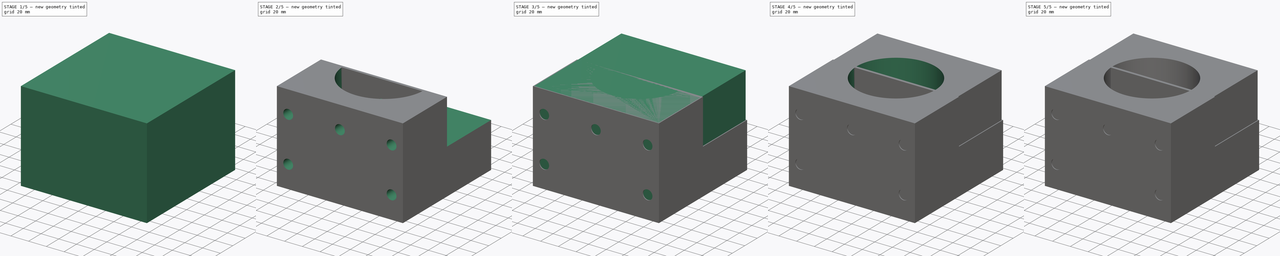
[diagram: build sequence overview — one tinted view per stage of 5, left to right]
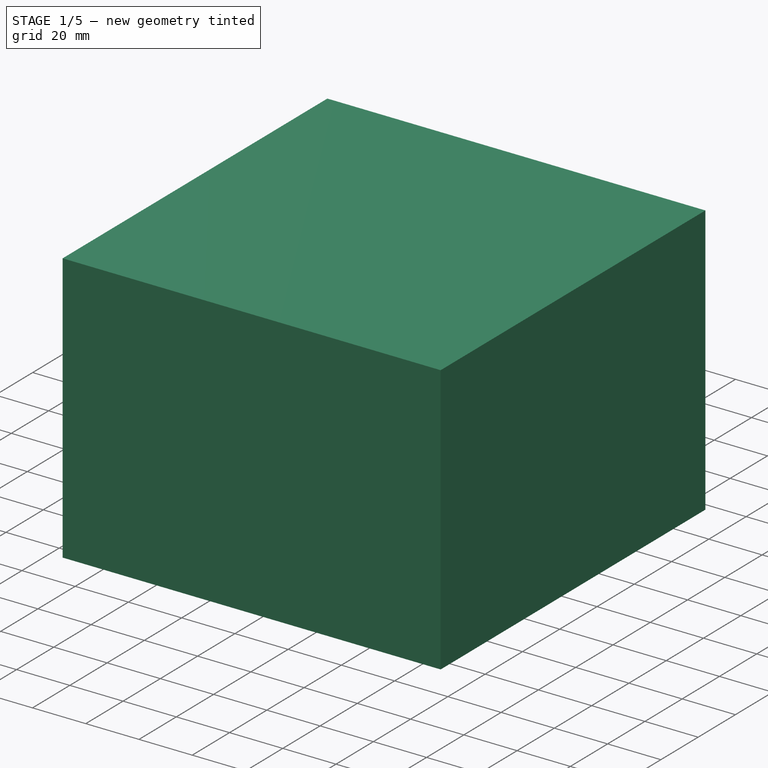
[diagram: stage 1 of 5 — iso view after this stage's code; geometry added in this stage tinted green]
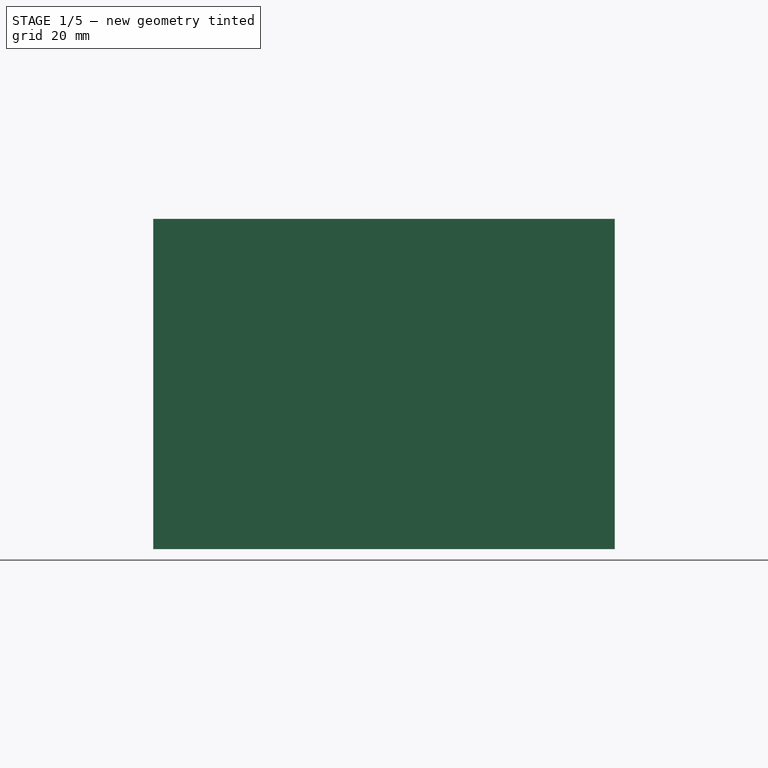
[diagram: stage 1 of 5 — front view after this stage's code; geometry added in this stage tinted green]
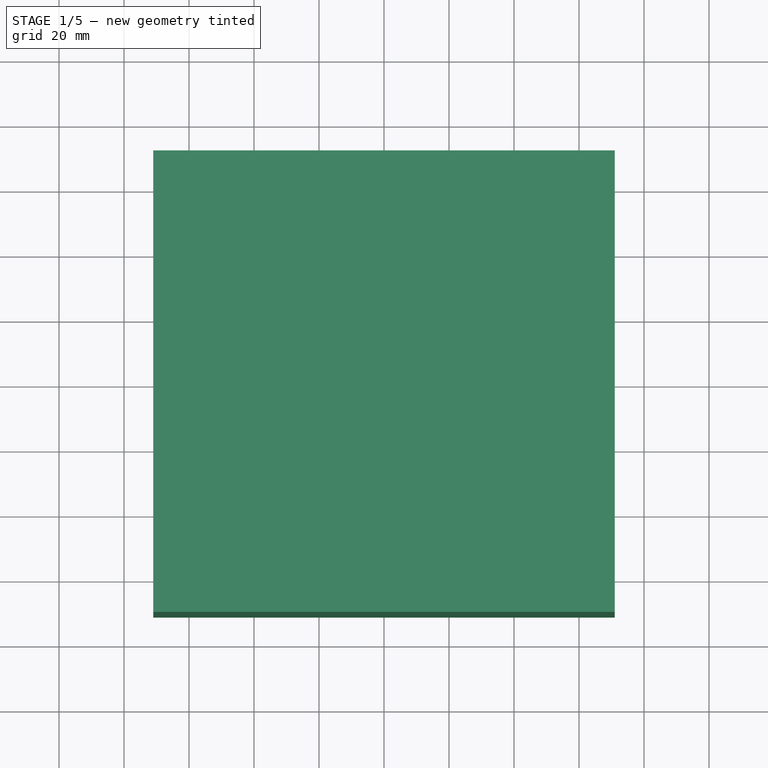
[diagram: stage 1 of 5 — top view after this stage's code; geometry added in this stage tinted green]
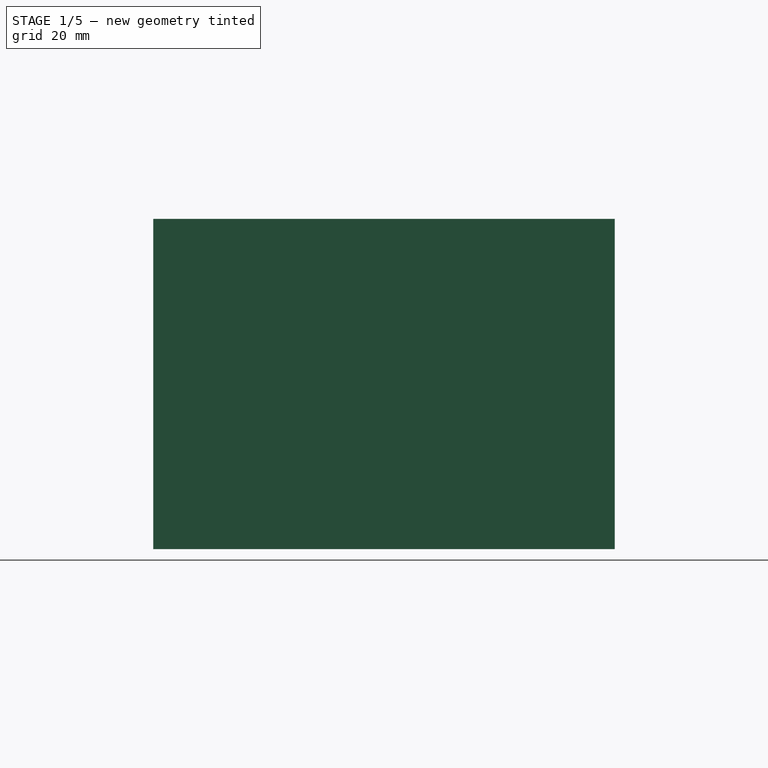
[diagram: stage 1 of 5 — right view after this stage's code; geometry added in this stage tinted green]
FCSTD DOCUMENT  (FreeCAD 0.21R33771 (Git))
Label: MastMounts
License: All rights reserved
LicenseURL: http://en.wikipedia.org/wiki/All_rights_reserved
objects: Sketcher::SketchObject×18, PartDesign::Pocket×13, PartDesign::Pad×5, PartDesign::Body×5, App::Part×5, Spreadsheet::Sheet×2, PartDesign::Chamfer×2
note: 63 computed .brp shape members not serialized (recipe doc carries the construction recipe); baked Part::Feature solids carry a one-line shape summary decoded from their .brp

FEATURE [PartDesign::Body] Body  label="MastBaseBody"
  Group = -> [Sketch,Pad,Sketch001,Pocket,Sketch002,Pocket001,Sketch007,Pocket005,Chamfer]
  Origin = -> Origin001
  Tip = -> Chamfer
FEATURE [App::Part] Part  label="MastBasePart"
  Group = -> [Body]
  Origin = -> Origin
FEATURE [Sketcher::SketchObject] Sketch008
  FullyConstrained = true
  MapMode = 5
  Support = -> [XY_Plane005]
  expr: Constraints[10] = <<p001>>.mast_od + <<p001>>.mast_clearance * 2
  expr: Constraints[9] = <<p001>>.mast_od + <<p001>>.mast_clearance * 2
  sketch-geometry (4):
    g0: LineSegment StartX=-71 StartY=71 StartZ=0 EndX=71 EndY=71 EndZ=0
    g1: LineSegment StartX=71 StartY=71 StartZ=0 EndX=71 EndY=-71 EndZ=0
    g2: LineSegment StartX=71 StartY=-71 StartZ=0 EndX=-71 EndY=-71 EndZ=0
    g3: LineSegment StartX=-71 StartY=-71 StartZ=0 EndX=-71 EndY=71 EndZ=0
  constraints (11):
    c: Coincident(g0,g1)
    c: Coincident(g1,g2)
    c: Coincident(g2,g3)
    c: Coincident(g3,g0)
    c: Horizontal(g0)
    c: Horizontal(g2)
    c: Vertical(g1)
    c: Vertical(g3)
    c: Symmetric(g0,g2,g-1)
    c: DistanceX(g0,g0) = 142
    c: DistanceY(g1,g1) = 142
FEATURE [PartDesign::Pad] Pad002  label="HolderBase001"
  Direction = (0,0,1)
  Length = 101.6
  Length2 = 10
  Profile = -> Sketch008
  ReferenceAxis = -> Sketch008 [N_Axis]
  Type = 0
  expr: Length = <<p001>>.holder_thickness * 2
FEATURE [PartDesign::Body] Body002  label="HolderBody001"
  Group = -> [Sketch008,Pad002,Sketch009,Pocket006,Sketch010,Pocket007,Sketch011,Pocket008,Sketch012,Pocket009,Chamfer001,Sketch013,Pocket010]
  Origin = -> Origin005
  Tip = -> Pocket010
FEATURE [App::Part] Part002  label="HolderParts001"
  Group = -> [Body002]
  Origin = -> Origin004
FEATURE [Sketcher::SketchObject] Sketch014
  FullyConstrained = true
  MapMode = 5
  Placement = pos=(0,0,0) rot=(1,0,0;1.5708rad)
  Support = -> [XZ_Plane007]
  expr: Constraints[9] = <<p>>.base_thickness
  sketch-geometry (4):
    g0: LineSegment StartX=-71 StartY=101.6 StartZ=0 EndX=71 EndY=101.6 EndZ=0
    g1: LineSegment StartX=71 StartY=101.6 StartZ=0 EndX=71 EndY=0 EndZ=0
    g2: LineSegment StartX=71 StartY=0 StartZ=0 EndX=-71 EndY=0 EndZ=0
    g3: LineSegment StartX=-71 StartY=0 StartZ=0 EndX=-71 EndY=101.6 EndZ=0
  constraints (12):
    c: Coincident(g0,g1)
    c: Coincident(g1,g2)
    c: Coincident(g2,g3)
    c: Coincident(g3,g0)
    c: Horizontal(g0)
    c: Horizontal(g2)
    c: Vertical(g1)
    c: Vertical(g3)
    c: DistanceX(g0,g0) = 142
    c: DistanceY(g1,g1) = 101.6
    c: DistanceY(g2,g-1) = 0
    c: DistanceX(g-1,g1) = 71
FEATURE [Sketcher::SketchObject] Sketch015
  FullyConstrained = true
  MapMode = 5
  Placement = pos=(0,-71,0) rot=(1,0,0;1.5708rad)
  Support = -> [Pocket006]
  expr: Constraints[10] = <<p001>>.holder_thickness * 2 - <<p001>>.holder_thickness / 2
  expr: Constraints[11] = <<p001>>.holder_thickness * 2 - <<p001>>.holder_thickness / 2
  expr: Constraints[13] = <<p001>>.bold_diameter
  expr: Constraints[1] = <<p001>>.bold_diameter
  expr: Constraints[2] = (<<p001>>.mast_od + <<p001>>.mast_clearance * 2) / 2 - <<p001>>.mast_clearance / 2
  expr: Constraints[3] = (<<p001>>.mast_od + <<p001>>.mast_clearance * 2) / 2 - <<p001>>.mast_clearance / 2
  expr: Constraints[4] = <<p001>>.holder_thickness / 2
  expr: Constraints[5] = <<p001>>.holder_thickness / 2
  expr: Constraints[7] = <<p001>>.bold_diameter
  expr: Constraints[8] = (<<p001>>.mast_od + <<p001>>.mast_clearance * 2) / 2 - <<p001>>.mast_clearance / 2
  expr: Constraints[9] = (<<p001>>.mast_od + <<p001>>.mast_clearance * 2) / 2 - <<p001>>.mast_clearance / 2
  sketch-geometry (5):
    g0: Circle CenterX=-58.25 CenterY=25.4 CenterZ=0 NormalX=0 NormalY=0 NormalZ=1 AngleXU=0 Radius=5.5
    g1: Circle CenterX=58.25 CenterY=25.4 CenterZ=0 NormalX=0 NormalY=0 NormalZ=1 AngleXU=0 Radius=5.5
    g2: Circle CenterX=-58.25 CenterY=76.2 CenterZ=0 NormalX=0 NormalY=0 NormalZ=1 AngleXU=0 Radius=5.5
    g3: Circle CenterX=58.25 CenterY=76.2 CenterZ=0 NormalX=0 NormalY=0 NormalZ=1 AngleXU=0 Radius=5.5
    g4: Circle CenterX=0 CenterY=76.2 CenterZ=0 NormalX=0 NormalY=0 NormalZ=1 AngleXU=0 Radius=5.5
  constraints (15):
    c: Equal(g1,g0)
    c: Diameter(g1) = 11
    c: DistanceX(g0,g-1) = 58.25
    c: DistanceX(g-1,g1) = 58.25
    c: DistanceY(g-1,g0) = 25.4
    c: DistanceY(g-1,g1) = 25.4
    c: Equal(g2,g3)
    c: Diameter(g2) = 11
    c: DistanceX(g2,g-1) = 58.25
    c: DistanceX(g-1,g3) = 58.25
    c: DistanceY(g-1,g2) = 76.2
    c: DistanceY(g-1,g3) = 76.2
    c: PointOnObject(g4,g-2)
    c: Diameter(g4) = 11
    c: DistanceY(g-1,g4) = 76.2
FEATURE [PartDesign::Pad] Pad003
  Direction = (0,-1,2e-16)
  Length = 3
  Length2 = 10
  Placement = pos=(0,0,0) rot=(1,0,0;1.5708rad)
  Profile = -> Sketch014
  ReferenceAxis = -> Sketch014 [N_Axis]
  Type = 0
FEATURE [PartDesign::Body] Body003  label="BigBackBody"
  Group = -> [Sketch014,Pad003,Sketch015,Pocket011]
  Origin = -> Origin007
  Tip = -> Pocket011
FEATURE [App::Part] Part003  label="BigBackPart"
  Group = -> [Body003]
  Origin = -> Origin006
FEATURE [Sketcher::SketchObject] Sketch016
  FullyConstrained = true
  MapMode = 5
  Placement = pos=(0,0,0) rot=(1,0,0;1.5708rad)
  Support = -> [XZ_Plane009]
  expr: Constraints[9] = <<p>>.holder_thickness
  sketch-geometry (4):
    g0: LineSegment StartX=-70 StartY=0 StartZ=0 EndX=70 EndY=0 EndZ=0
    g1: LineSegment StartX=70 StartY=0 StartZ=0 EndX=70 EndY=50.8 EndZ=0
    g2: LineSegment StartX=70 StartY=50.8 StartZ=0 EndX=-70 EndY=50.8 EndZ=0
    g3: LineSegment StartX=-70 StartY=50.8 StartZ=0 EndX=-70 EndY=0 EndZ=0
  constraints (12):
    c: Coincident(g0,g1)
    c: Coincident(g1,g2)
    c: Coincident(g2,g3)
    c: Coincident(g3,g0)
    c: Horizontal(g0)
    c: Horizontal(g2)
    c: Vertical(g1)
    c: Vertical(g3)
    c: PointOnObject(g0,g-1)
    c: DistanceY(g3,g3) = 50.8
    c: DistanceX(g2,g2) = 140
    c: DistanceX(g-1,g0) = 70
FEATURE [PartDesign::Pad] Pad004
  Direction = (0,-1,2e-16)
  Length = 3
  Length2 = 10
  Placement = pos=(0,0,0) rot=(1,0,0;1.5708rad)
  Profile = -> Sketch016
  ReferenceAxis = -> Sketch016 [N_Axis]
  Type = 0
FEATURE [Sketcher::SketchObject] Sketch017
  FullyConstrained = true
  MapMode = 5
  Placement = pos=(0,-3,7e-16) rot=(1,0,0;1.5708rad)
  Support = -> [Pad004]
  expr: Constraints[1] = <<p>>.bold_diameter
  expr: Constraints[2] = (<<p>>.mast_od + <<p>>.mast_clearance * 2) / 2 - <<p>>.mast_clearance / 2
  expr: Constraints[3] = (<<p>>.mast_od + <<p>>.mast_clearance * 2) / 2 - <<p>>.mast_clearance / 2
  expr: Constraints[4] = <<p>>.holder_thickness / 2
  expr: Constraints[5] = <<p>>.holder_thickness / 2
  sketch-geometry (2):
    g0: Circle CenterX=-57.25 CenterY=25.4 CenterZ=0 NormalX=0 NormalY=0 NormalZ=1 AngleXU=0 Radius=5.5
    g1: Circle CenterX=57.25 CenterY=25.4 CenterZ=0 NormalX=0 NormalY=0 NormalZ=1 AngleXU=0 Radius=5.5
  constraints (6):
    c: Equal(g1,g0)
    c: Diameter(g1) = 11
    c: DistanceX(g0,g-1) = 57.25
    c: DistanceX(g-1,g1) = 57.25
    c: DistanceY(g-1,g0) = 25.4
    c: DistanceY(g-1,g1) = 25.4
FEATURE [PartDesign::Pocket] Pocket012
  BaseFeature = -> Pad004
  Direction = (0,1,-2e-16)
  Length = 5
  Length2 = 5
  Placement = pos=(0,0,0) rot=(1,0,0;1.5708rad)
  Profile = -> Sketch017
  ReferenceAxis = -> Sketch017 [N_Axis]
  Type = 0
FEATURE [PartDesign::Body] Body004  label="SmallBackBody"
  Group = -> [Sketch016,Pad004,Sketch017,Pocket012]
  Origin = -> Origin009
  Tip = -> Pocket012
FEATURE [App::Part] Part004  label="SmallBack"
  Group = -> [Body004]
  Origin = -> Origin008
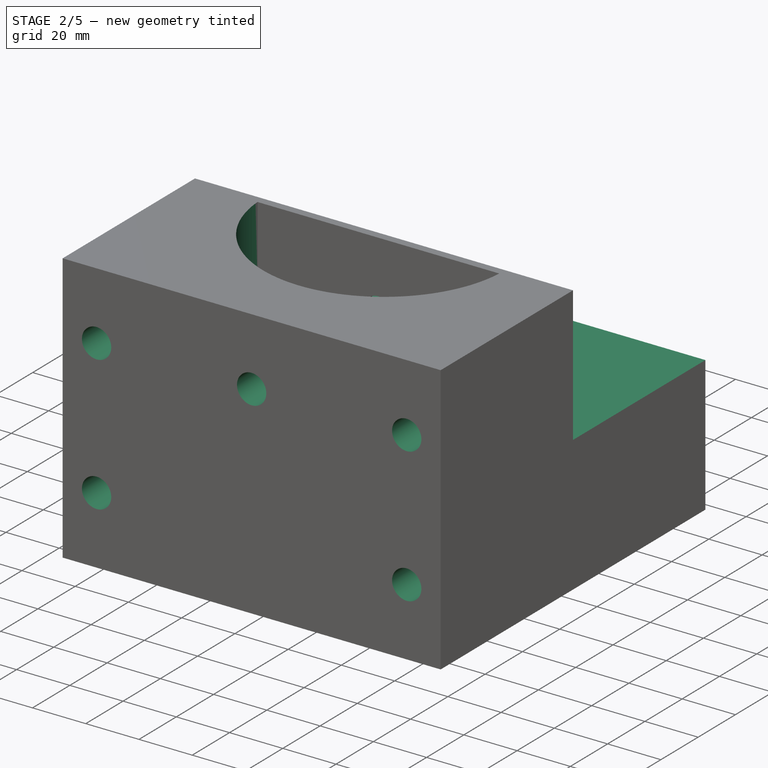
[diagram: stage 2 of 5 — iso view after this stage's code; geometry added in this stage tinted green]
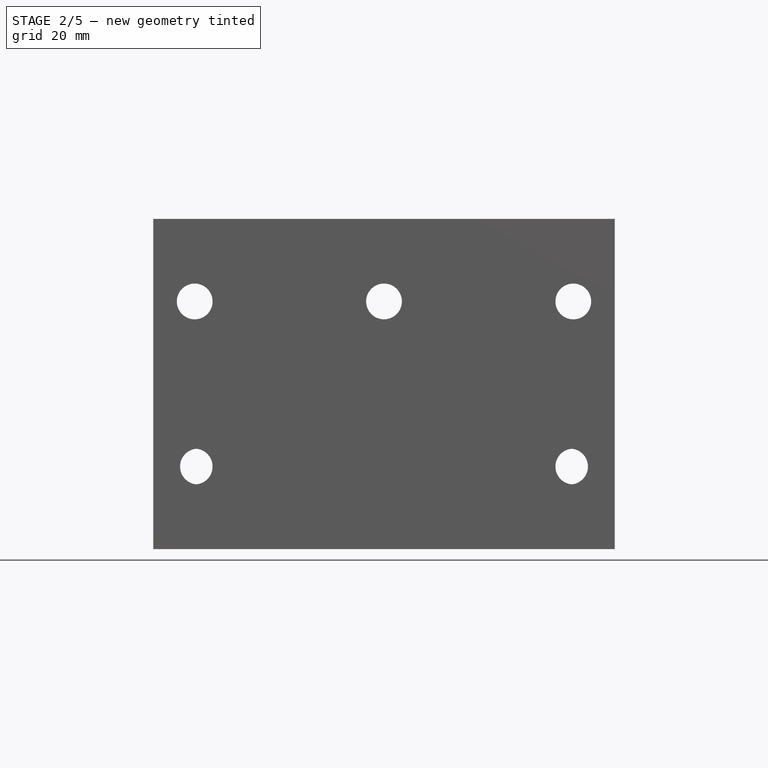
[diagram: stage 2 of 5 — front view after this stage's code; geometry added in this stage tinted green]
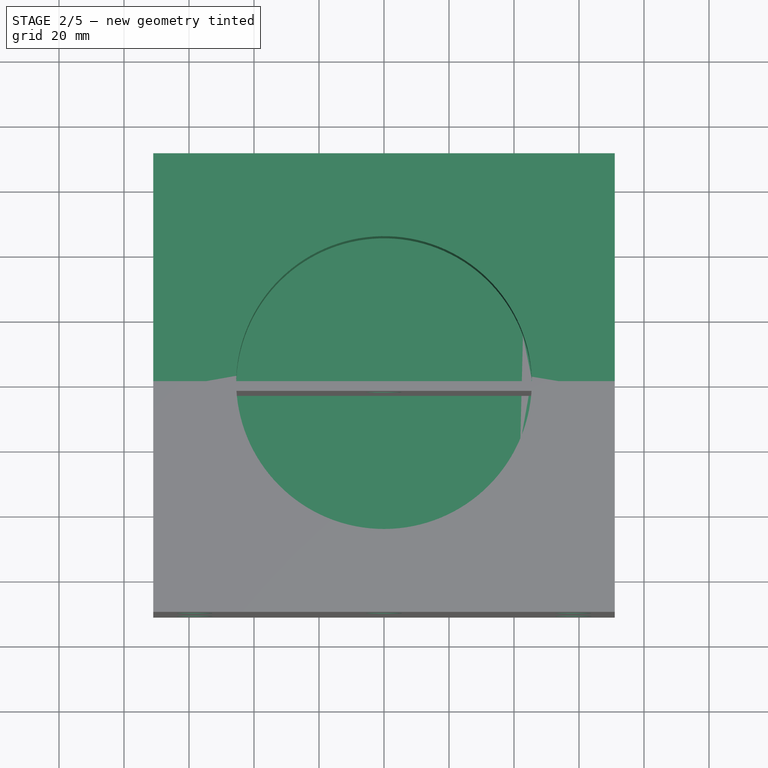
[diagram: stage 2 of 5 — top view after this stage's code; geometry added in this stage tinted green]
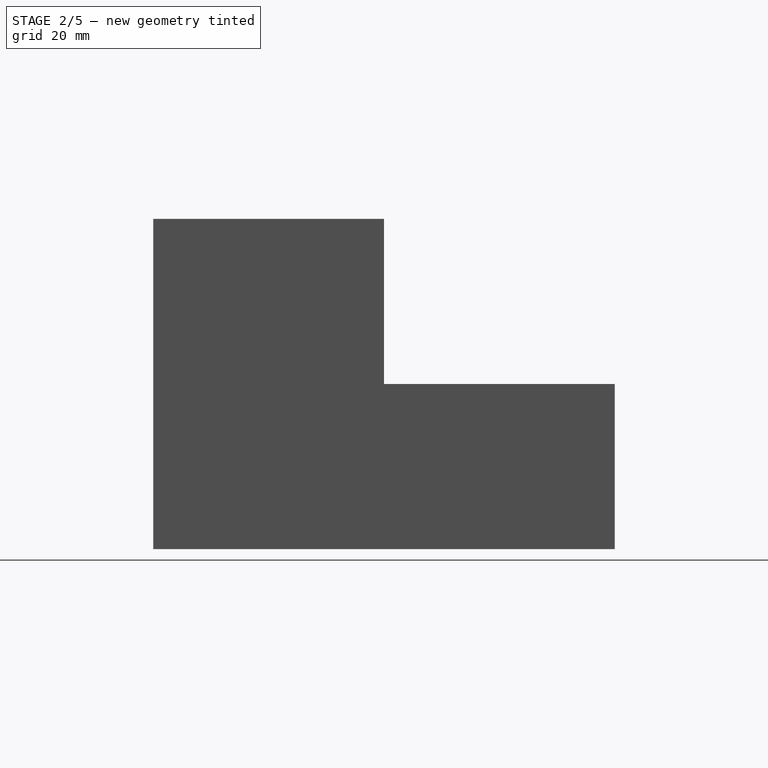
[diagram: stage 2 of 5 — right view after this stage's code; geometry added in this stage tinted green]
FEATURE [Sketcher::SketchObject] Sketch009
  FullyConstrained = true
  MapMode = 5
  Placement = pos=(0,0,101.6) rot=(0,0,1;0rad)
  Support = -> [Pad002]
  expr: Constraints[1] = <<p001>>.mast_od
  sketch-geometry (1):
    g0: Circle CenterX=0 CenterY=0 CenterZ=0 NormalX=0 NormalY=0 NormalZ=1 AngleXU=0 Radius=45.5
  constraints (2):
    c: Coincident(g0,g-1)
    c: Diameter(g0) = 91
FEATURE [Spreadsheet::Sheet] Spreadsheet001  label="p001"
  cells = A1='mast_od; B1(mast_od)=91; A2='mast_clearance; B2(mast_clearance)=25.5; A3='bold_diameter; B3(bold_diameter)=11; A4='base_thickness; B4(base_thickness)=101.6; A5='holder_thickness; B5(holder_thickness)=50.8; A6='holder_clearance; B6(holder_clearance)=4
FEATURE [PartDesign::Pocket] Pocket006  label="MastPocket002"
  BaseFeature = -> Pad002
  Direction = (0,0,-1)
  Length = 88.85
  Length2 = 5
  Profile = -> Sketch009
  ReferenceAxis = -> Sketch009 [N_Axis]
  Type = 0
  expr: Length = <<p001>>.holder_thickness * 2 - <<p001>>.mast_clearance / 2
FEATURE [Sketcher::SketchObject] Sketch010
  FullyConstrained = true
  MapMode = 5
  Placement = pos=(0,-71,0) rot=(1,0,0;1.5708rad)
  Support = -> [Pocket006]
  expr: Constraints[10] = <<p001>>.holder_thickness * 2 - <<p001>>.holder_thickness / 2
  expr: Constraints[11] = <<p001>>.holder_thickness * 2 - <<p001>>.holder_thickness / 2
  expr: Constraints[13] = <<p001>>.bold_diameter
  expr: Constraints[1] = <<p001>>.bold_diameter
  expr: Constraints[2] = (<<p001>>.mast_od + <<p001>>.mast_clearance * 2) / 2 - <<p001>>.mast_clearance / 2
  expr: Constraints[3] = (<<p001>>.mast_od + <<p001>>.mast_clearance * 2) / 2 - <<p001>>.mast_clearance / 2
  expr: Constraints[4] = <<p001>>.holder_thickness / 2
  expr: Constraints[5] = <<p001>>.holder_thickness / 2
  expr: Constraints[7] = <<p001>>.bold_diameter
  expr: Constraints[8] = (<<p001>>.mast_od + <<p001>>.mast_clearance * 2) / 2 - <<p001>>.mast_clearance / 2
  expr: Constraints[9] = (<<p001>>.mast_od + <<p001>>.mast_clearance * 2) / 2 - <<p001>>.mast_clearance / 2
  sketch-geometry (5):
    g0: Circle CenterX=-58.25 CenterY=25.4 CenterZ=0 NormalX=0 NormalY=0 NormalZ=1 AngleXU=0 Radius=5.5
    g1: Circle CenterX=58.25 CenterY=25.4 CenterZ=0 NormalX=0 NormalY=0 NormalZ=1 AngleXU=0 Radius=5.5
    g2: Circle CenterX=-58.25 CenterY=76.2 CenterZ=0 NormalX=0 NormalY=0 NormalZ=1 AngleXU=0 Radius=5.5
    g3: Circle CenterX=58.25 CenterY=76.2 CenterZ=0 NormalX=0 NormalY=0 NormalZ=1 AngleXU=0 Radius=5.5
    g4: Circle CenterX=0 CenterY=76.2 CenterZ=0 NormalX=0 NormalY=0 NormalZ=1 AngleXU=0 Radius=5.5
  constraints (15):
    c: Equal(g1,g0)
    c: Diameter(g1) = 11
    c: DistanceX(g0,g-1) = 58.25
    c: DistanceX(g-1,g1) = 58.25
    c: DistanceY(g-1,g0) = 25.4
    c: DistanceY(g-1,g1) = 25.4
    c: Equal(g2,g3)
    c: Diameter(g2) = 11
    c: DistanceX(g2,g-1) = 58.25
    c: DistanceX(g-1,g3) = 58.25
    c: DistanceY(g-1,g2) = 76.2
    c: DistanceY(g-1,g3) = 76.2
    c: PointOnObject(g4,g-2)
    c: Diameter(g4) = 11
    c: DistanceY(g-1,g4) = 76.2
FEATURE [PartDesign::Pocket] Pocket007  label="BoltPockets001"
  BaseFeature = -> Pocket006
  Direction = (0,1,-2e-16)
  Length = 5
  Length2 = 5
  Profile = -> Sketch010
  ReferenceAxis = -> Sketch010 [N_Axis]
  Type = 1
FEATURE [Sketcher::SketchObject] Sketch011
  FullyConstrained = true
  MapMode = 5
  Placement = pos=(0,0,101.6) rot=(0,0,1;0rad)
  Support = -> [Pocket007]
  expr: Constraints[10] = <<p001>>.holder_clearance / 2
  sketch-geometry (4):
    g0: LineSegment StartX=-78.68 StartY=73.5 StartZ=0 EndX=77.18 EndY=73.5 EndZ=0
    g1: LineSegment StartX=77.18 StartY=73.5 StartZ=0 EndX=77.18 EndY=-2 EndZ=0
    g2: LineSegment StartX=77.18 StartY=-2 StartZ=0 EndX=-78.68 EndY=-2 EndZ=0
    g3: LineSegment StartX=-78.68 StartY=-2 StartZ=0 EndX=-78.68 EndY=73.5 EndZ=0
  constraints (12):
    c: Coincident(g0,g1)
    c: Coincident(g1,g2)
    c: Coincident(g2,g3)
    c: Coincident(g3,g0)
    c: Horizontal(g0)
    c: Horizontal(g2)
    c: Vertical(g1)
    c: Vertical(g3)
    c: DistanceX(g0,g0) = 155.86
    c: DistanceY(g1,g1) = 75.5
    c: DistanceY(g2,g-1) = 2
    c: DistanceX(g0,g-1) = 78.68
FEATURE [PartDesign::Pocket] Pocket008
  BaseFeature = -> Pocket007
  Direction = (0,0,-1)
  Length = 50.8
  Length2 = 5
  Profile = -> Sketch011
  ReferenceAxis = -> Sketch011 [N_Axis]
  Type = 0
  expr: Length = <<p001>>.holder_thickness
FEATURE [PartDesign::Pocket] Pocket011
  BaseFeature = -> Pad003
  Direction = (0,1,-2e-16)
  Length = 5
  Length2 = 5
  Placement = pos=(0,0,0) rot=(1,0,0;1.5708rad)
  Profile = -> Sketch015
  ReferenceAxis = -> Sketch015 [N_Axis]
  Type = 1
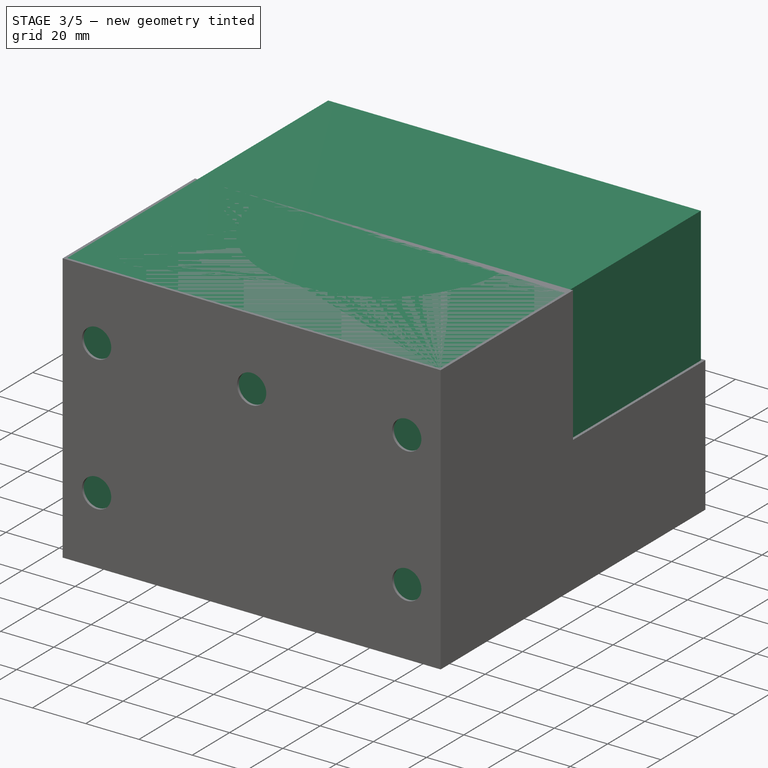
[diagram: stage 3 of 5 — iso view after this stage's code; geometry added in this stage tinted green]
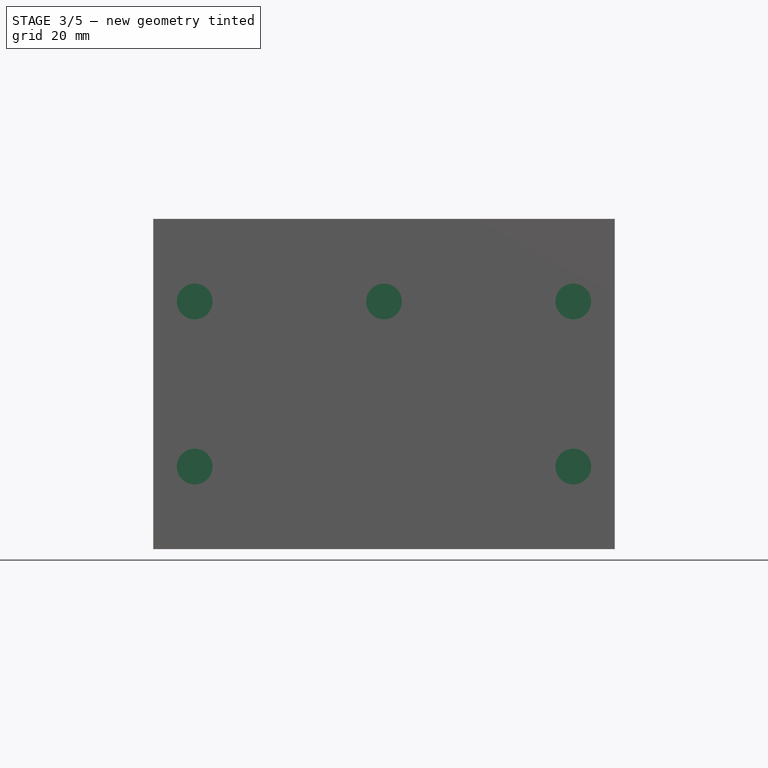
[diagram: stage 3 of 5 — front view after this stage's code; geometry added in this stage tinted green]
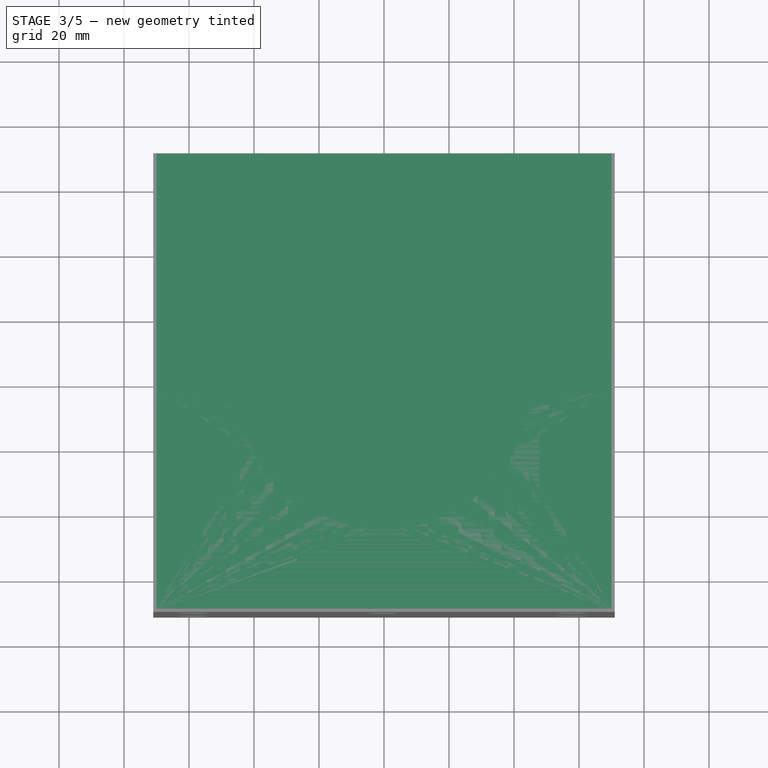
[diagram: stage 3 of 5 — top view after this stage's code; geometry added in this stage tinted green]
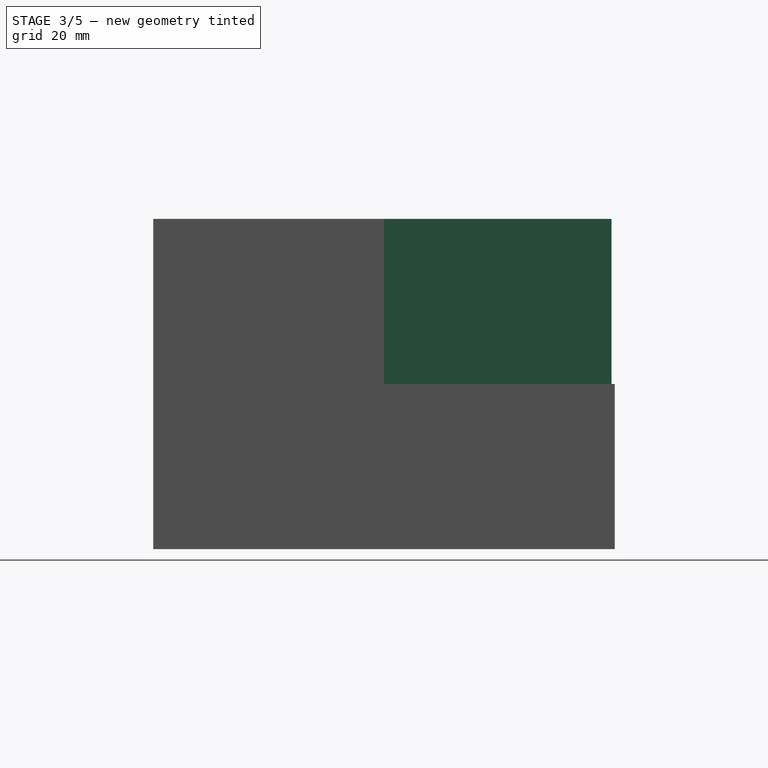
[diagram: stage 3 of 5 — right view after this stage's code; geometry added in this stage tinted green]
FEATURE [Spreadsheet::Sheet] Spreadsheet  label="p"
  cells = A1='mast_od; B1(mast_od)=89; A2='mast_clearance; B2(mast_clearance)=25.5; A3='bold_diameter; B3(bold_diameter)=11; A4='base_thickness; B4(base_thickness)=101.6; A5='holder_thickness; B5(holder_thickness)=50.8; A6='holder_clearance; B6(holder_clearance)=4
FEATURE [Sketcher::SketchObject] Sketch
  FullyConstrained = true
  MapMode = 5
  Support = -> [XY_Plane001]
  sketch-geometry (4):
    g0: LineSegment StartX=-70 StartY=70 StartZ=0 EndX=70 EndY=70 EndZ=0
    g1: LineSegment StartX=70 StartY=70 StartZ=0 EndX=70 EndY=-70 EndZ=0
    g2: LineSegment StartX=70 StartY=-70 StartZ=0 EndX=-70 EndY=-70 EndZ=0
    g3: LineSegment StartX=-70 StartY=-70 StartZ=0 EndX=-70 EndY=70 EndZ=0
  constraints (11):
    c: Coincident(g0,g1)
    c: Coincident(g1,g2)
    c: Coincident(g2,g3)
    c: Coincident(g3,g0)
    c: Horizontal(g0)
    c: Horizontal(g2)
    c: Vertical(g1)
    c: Vertical(g3)
    c: Symmetric(g0,g2,g-1)
    c: DistanceX(g0,g0) = 140
    c: DistanceY(g3,g3) = 140
FEATURE [PartDesign::Pad] Pad  label="Base"
  Direction = (0,0,1)
  Length = 101.6
  Length2 = 10
  Profile = -> Sketch
  ReferenceAxis = -> Sketch [N_Axis]
  Type = 0
  expr: Length = <<p>>.base_thickness
FEATURE [Sketcher::SketchObject] Sketch012
  FullyConstrained = true
  MapMode = 5
  Placement = pos=(0,0,12.75) rot=(0,0,1;0rad)
  Support = -> [Pocket008]
  sketch-geometry (5):
    g0: Circle CenterX=0 CenterY=0 CenterZ=0 NormalX=0 NormalY=0 NormalZ=1 AngleXU=0 Radius=2
    g1: Circle CenterX=-23 CenterY=0 CenterZ=0 NormalX=0 NormalY=0 NormalZ=1 AngleXU=0 Radius=2
    g2: Circle CenterX=23 CenterY=0 CenterZ=0 NormalX=0 NormalY=0 NormalZ=1 AngleXU=0 Radius=2
    g3: Circle CenterX=0 CenterY=23 CenterZ=0 NormalX=0 NormalY=0 NormalZ=1 AngleXU=0 Radius=2
    g4: Circle CenterX=0 CenterY=-23 CenterZ=0 NormalX=0 NormalY=0 NormalZ=1 AngleXU=0 Radius=2
  constraints (11):
    c: Coincident(g0,g-1)
    c: PointOnObject(g1,g-1)
    c: PointOnObject(g2,g-1)
    c: PointOnObject(g3,g-2)
    c: PointOnObject(g4,g-2)
    c: Equal(g0, g1-g4) x4
    c: Diameter(g0) = 4
    c: DistanceX(g0,g2) = 23
    c: DistanceX(g1,g0) = 23
    c: DistanceY(g0,g3) = 23
    c: DistanceY(g4,g0) = 23
FEATURE [PartDesign::Pocket] Pocket009
  BaseFeature = -> Pocket008
  Direction = (0,0,-1)
  Length = 5
  Length2 = 5
  Profile = -> Sketch012
  ReferenceAxis = -> Sketch012 [N_Axis]
  Type = 1
FEATURE [PartDesign::Chamfer] Chamfer001
  Angle = 45
  Base = -> Pocket009 [Edge43,Edge39,Edge37,Edge35,Edge41]
  BaseFeature = -> Pocket009
  ChamferType = 0
  FlipDirection = false
  Size = 3
  Size2 = 1
  SupportTransform = false
  UseAllEdges = false
FEATURE [Sketcher::SketchObject] Sketch013
  FullyConstrained = true
  MapMode = 5
  Placement = pos=(0,-2,0) rot=(0,0.707107,0.707107;3.14159rad)
  Support = -> [Chamfer001]
  expr: Constraints[1] = <<p001>>.holder_thickness * 2 - <<p001>>.holder_thickness / 2
  sketch-geometry (1):
    g0: Circle CenterX=0 CenterY=76.2 CenterZ=0 NormalX=0 NormalY=0 NormalZ=1 AngleXU=0 Radius=19.025
  constraints (3):
    c: PointOnObject(g0,g-2)
    c: DistanceY(g-1,g0) = 76.2
    c: Diameter(g0) = 38.05
FEATURE [PartDesign::Pocket] Pocket010
  BaseFeature = -> Chamfer001
  Direction = (0,-1,2e-16)
  Length = 54
  Length2 = 5
  Profile = -> Sketch013
  ReferenceAxis = -> Sketch013 [N_Axis]
  Type = 0
  expr: Length = <<p001>>.mast_od / 2 + <<p001>>.mast_clearance / 3
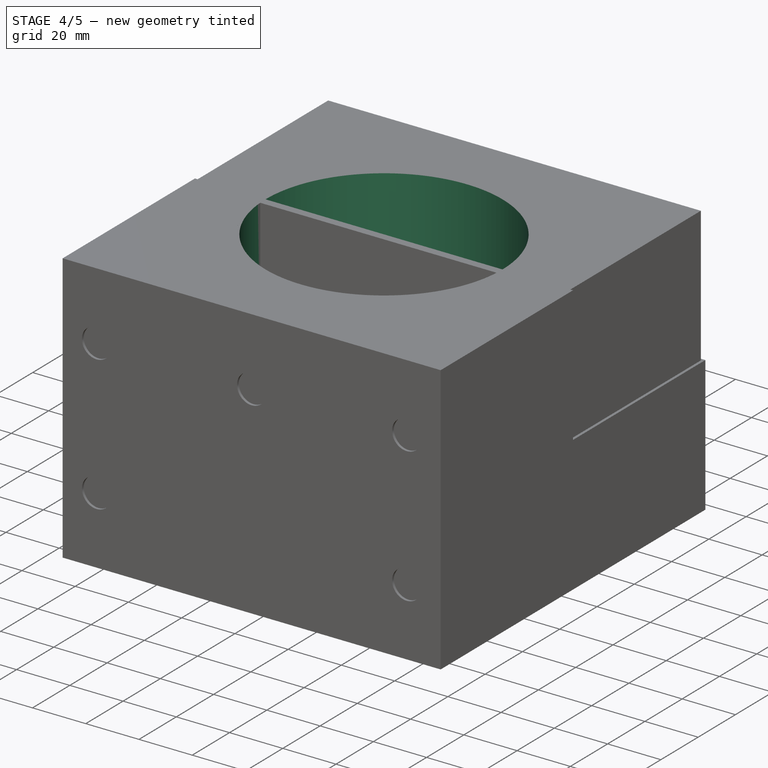
[diagram: stage 4 of 5 — iso view after this stage's code; geometry added in this stage tinted green]
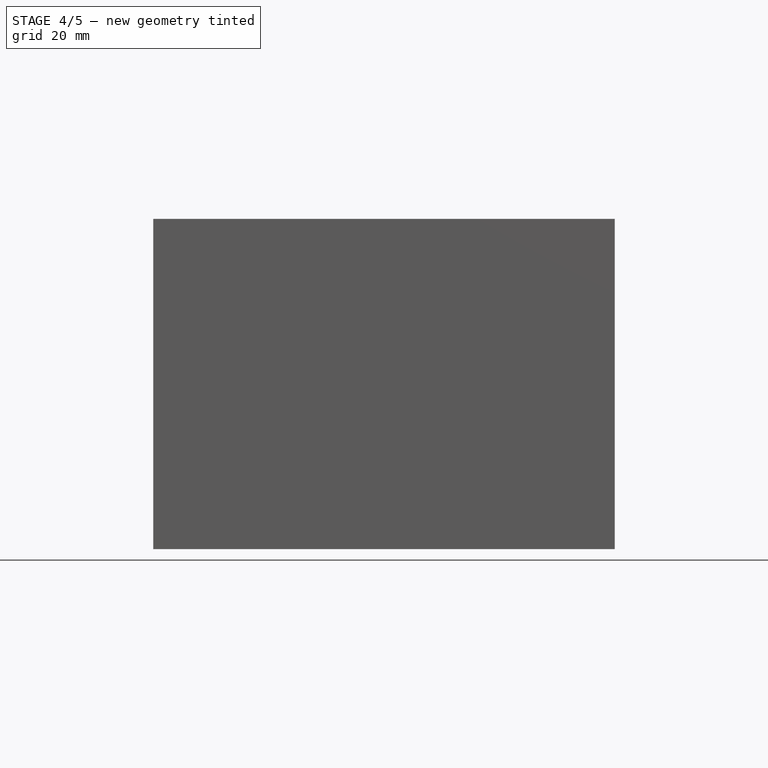
[diagram: stage 4 of 5 — front view after this stage's code; geometry added in this stage tinted green]
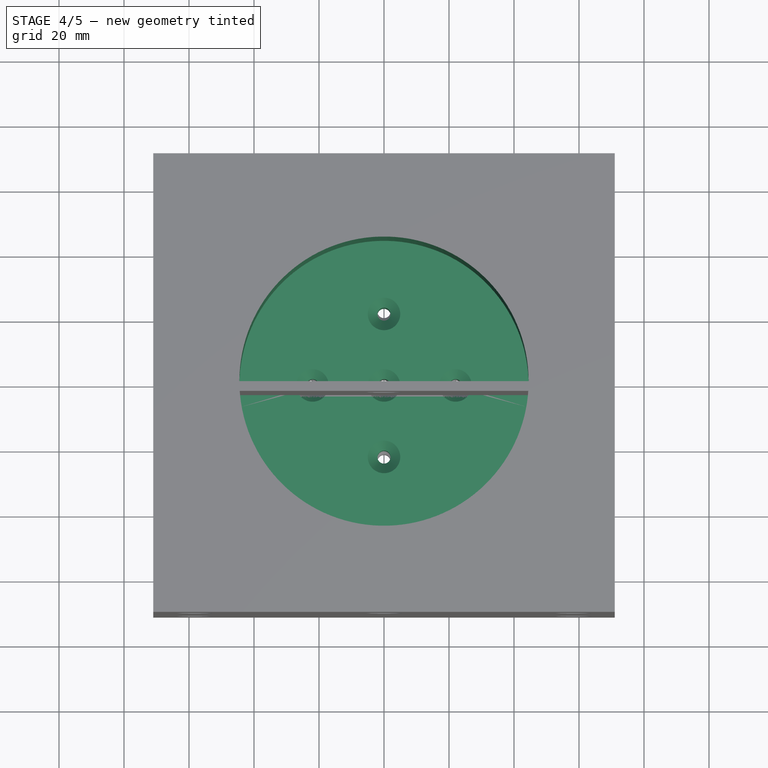
[diagram: stage 4 of 5 — top view after this stage's code; geometry added in this stage tinted green]
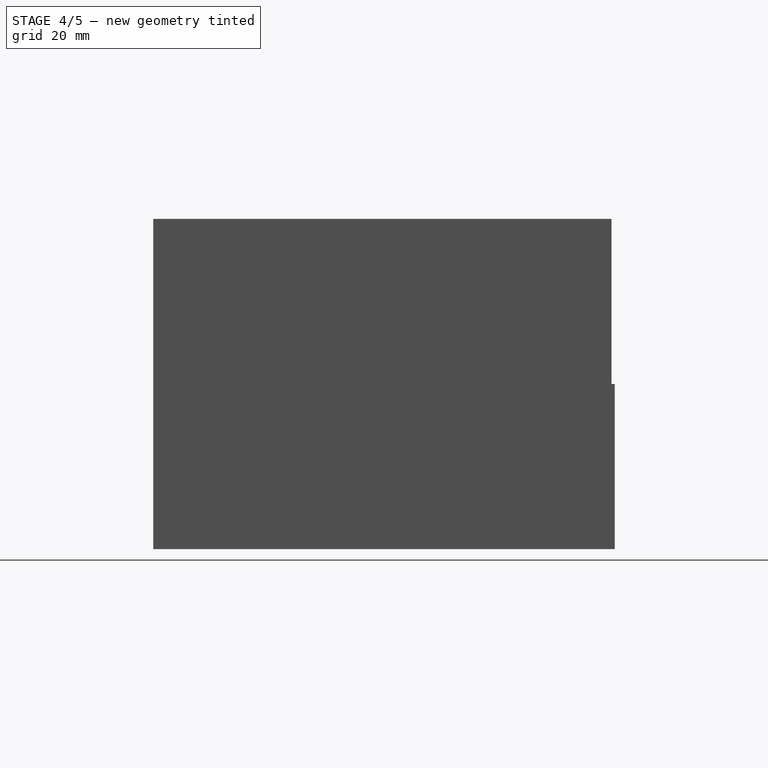
[diagram: stage 4 of 5 — right view after this stage's code; geometry added in this stage tinted green]
FEATURE [Sketcher::SketchObject] Sketch001
  FullyConstrained = true
  MapMode = 5
  Placement = pos=(0,0,101.6) rot=(0,0,1;0rad)
  Support = -> [Pad]
  expr: Constraints[1] = <<p>>.mast_od
  sketch-geometry (1):
    g0: Circle CenterX=0 CenterY=0 CenterZ=0 NormalX=0 NormalY=0 NormalZ=1 AngleXU=0 Radius=44.5
  constraints (2):
    c: Coincident(g0,g-1)
    c: Diameter(g0) = 89
FEATURE [PartDesign::Pocket] Pocket  label="MastPocket"
  BaseFeature = -> Pad
  Direction = (0,0,-1)
  Length = 76.1
  Length2 = 5
  Profile = -> Sketch001
  ReferenceAxis = -> Sketch001 [N_Axis]
  Type = 0
  expr: Length = <<p>>.base_thickness - <<p>>.mast_clearance
FEATURE [Sketcher::SketchObject] Sketch002
  FullyConstrained = true
  MapMode = 5
  Placement = pos=(0,-70,0) rot=(1,0,0;1.5708rad)
  Support = -> [Pocket]
  expr: Constraints[10] = <<p>>.base_thickness - <<p>>.mast_clearance / 2
  expr: Constraints[11] = <<p>>.base_thickness - <<p>>.mast_clearance / 2
  expr: Constraints[3] = <<p>>.bold_diameter
  expr: Constraints[4] = (<<p>>.mast_od + <<p>>.mast_clearance * 2) / 2 - <<p>>.mast_clearance / 2
  expr: Constraints[5] = (<<p>>.mast_od + <<p>>.mast_clearance * 2) / 2 - <<p>>.mast_clearance / 2
  expr: Constraints[6] = (<<p>>.mast_od + <<p>>.mast_clearance * 2) / 2 - <<p>>.mast_clearance / 2
  expr: Constraints[7] = (<<p>>.mast_od + <<p>>.mast_clearance * 2) / 2 - <<p>>.mast_clearance / 2
  expr: Constraints[8] = <<p>>.mast_clearance / 2
  expr: Constraints[9] = <<p>>.mast_clearance / 2
  sketch-geometry (4):
    g0: Circle CenterX=-57.25 CenterY=88.85 CenterZ=0 NormalX=0 NormalY=0 NormalZ=1 AngleXU=0 Radius=5.5
    g1: Circle CenterX=-57.25 CenterY=12.75 CenterZ=0 NormalX=0 NormalY=0 NormalZ=1 AngleXU=0 Radius=5.5
    g2: Circle CenterX=57.25 CenterY=88.85 CenterZ=0 NormalX=0 NormalY=0 NormalZ=1 AngleXU=0 Radius=5.5
    g3: Circle CenterX=57.25 CenterY=12.75 CenterZ=0 NormalX=0 NormalY=0 NormalZ=1 AngleXU=0 Radius=5.5
  constraints (12):
    c: Equal(g3,g2)
    c: Equal(g3,g0)
    c: Equal(g3,g1)
    c: Diameter(g3) = 11
    c: DistanceX(g1,g-1) = 57.25
    c: DistanceX(g-1,g3) = 57.25
    c: DistanceX(g0,g-1) = 57.25
    c: DistanceX(g-1,g2) = 57.25
    c: DistanceY(g-1,g1) = 12.75
    c: DistanceY(g-1,g3) = 12.75
    c: DistanceY(g-1,g2) = 88.85
    c: DistanceY(g-1,g0) = 88.85
FEATURE [PartDesign::Pocket] Pocket001  label="BoltPocket"
  BaseFeature = -> Pocket
  Direction = (0,1,-2e-16)
  Length = 5
  Length2 = 5
  Profile = -> Sketch002
  ReferenceAxis = -> Sketch002 [N_Axis]
  Type = 1
FEATURE [PartDesign::Body] Body001  label="HolderBody"
  Group = -> [Sketch003,Pad001,Sketch004,Pocket002,Sketch005,Pocket003,Sketch006,Pocket004]
  Origin = -> Origin003
  Tip = -> Pocket004
FEATURE [App::Part] Part001  label="HolderParts"
  Group = -> [Body001]
  Origin = -> Origin002
FEATURE [Sketcher::SketchObject] Sketch007
  FullyConstrained = true
  MapMode = 5
  Placement = pos=(0,0,25.5) rot=(0,0,1;0rad)
  Support = -> [Pocket001]
  sketch-geometry (5):
    g0: Circle CenterX=0 CenterY=0 CenterZ=0 NormalX=0 NormalY=0 NormalZ=1 AngleXU=0 Radius=2
    g1: Circle CenterX=0 CenterY=22 CenterZ=0 NormalX=0 NormalY=0 NormalZ=1 AngleXU=0 Radius=2
    g2: Circle CenterX=22 CenterY=0 CenterZ=0 NormalX=0 NormalY=0 NormalZ=1 AngleXU=0 Radius=2
    g3: Circle CenterX=0 CenterY=-22 CenterZ=0 NormalX=0 NormalY=0 NormalZ=1 AngleXU=0 Radius=2
    g4: Circle CenterX=-22 CenterY=0 CenterZ=0 NormalX=0 NormalY=0 NormalZ=1 AngleXU=0 Radius=2
  constraints (11):
    c: Coincident(g0,g-1)
    c: PointOnObject(g1,g-2)
    c: PointOnObject(g2,g-1)
    c: PointOnObject(g3,g-2)
    c: PointOnObject(g4,g-1)
    c: Equal(g0, g1-g4) x4
    c: Diameter(g0) = 4
    c: DistanceX(g0,g2) = 22
    c: DistanceX(g4,g0) = 22
    c: DistanceY(g0,g1) = 22
    c: DistanceY(g3,g0) = 22
FEATURE [PartDesign::Pocket] Pocket005
  BaseFeature = -> Pocket001
  Direction = (0,0,-1)
  Length = 5
  Length2 = 5
  Profile = -> Sketch007
  ReferenceAxis = -> Sketch007 [N_Axis]
  Type = 1
FEATURE [PartDesign::Chamfer] Chamfer
  Angle = 45
  Base = -> Pocket005 [Edge39,Edge35,Edge37,Edge33,Edge31]
  BaseFeature = -> Pocket005
  ChamferType = 0
  FlipDirection = false
  Size = 3
  Size2 = 1
  SupportTransform = false
  UseAllEdges = false
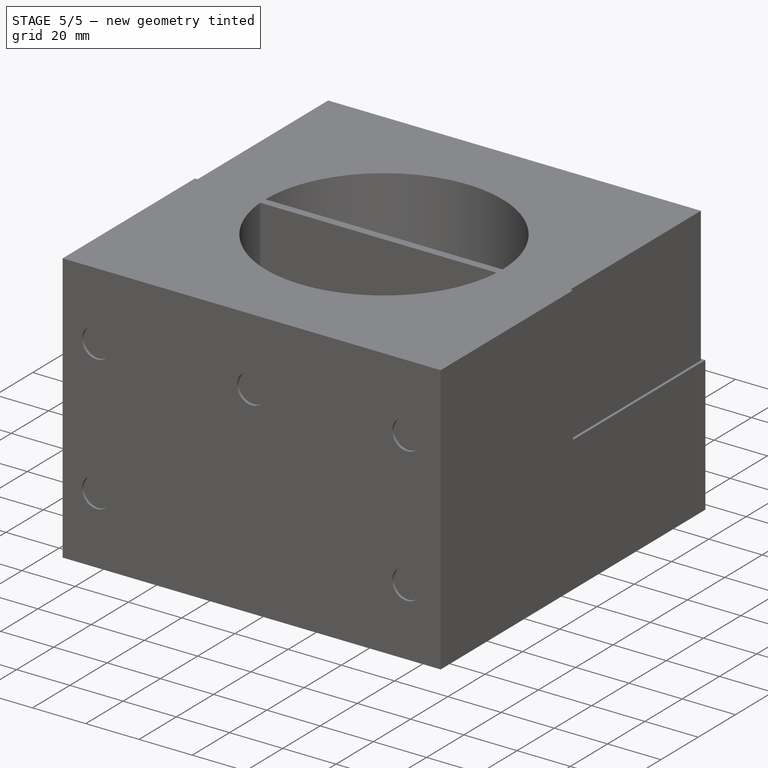
[diagram: stage 5 of 5 — iso view after this stage's code; geometry added in this stage tinted green]
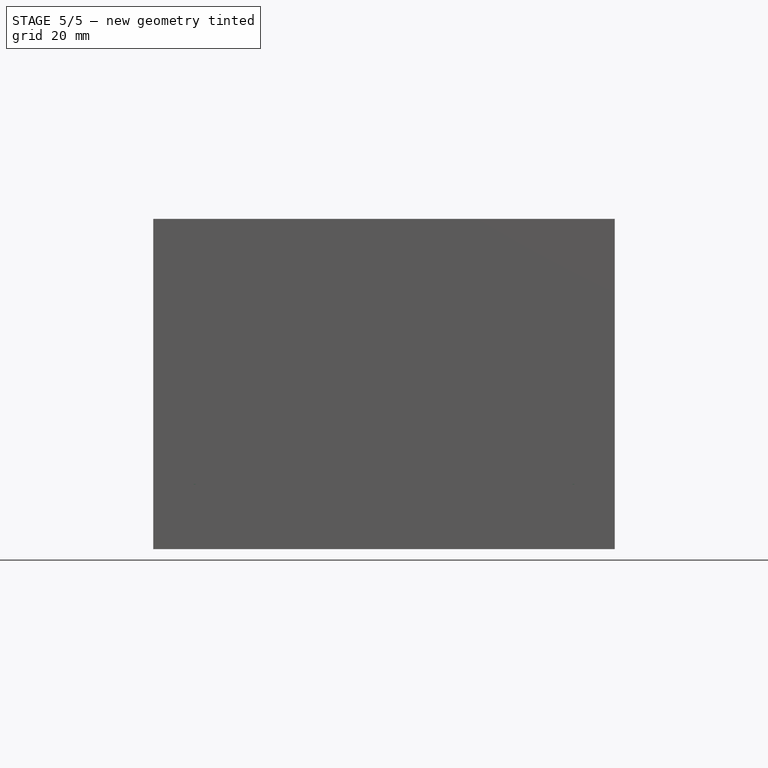
[diagram: stage 5 of 5 — front view after this stage's code; geometry added in this stage tinted green]
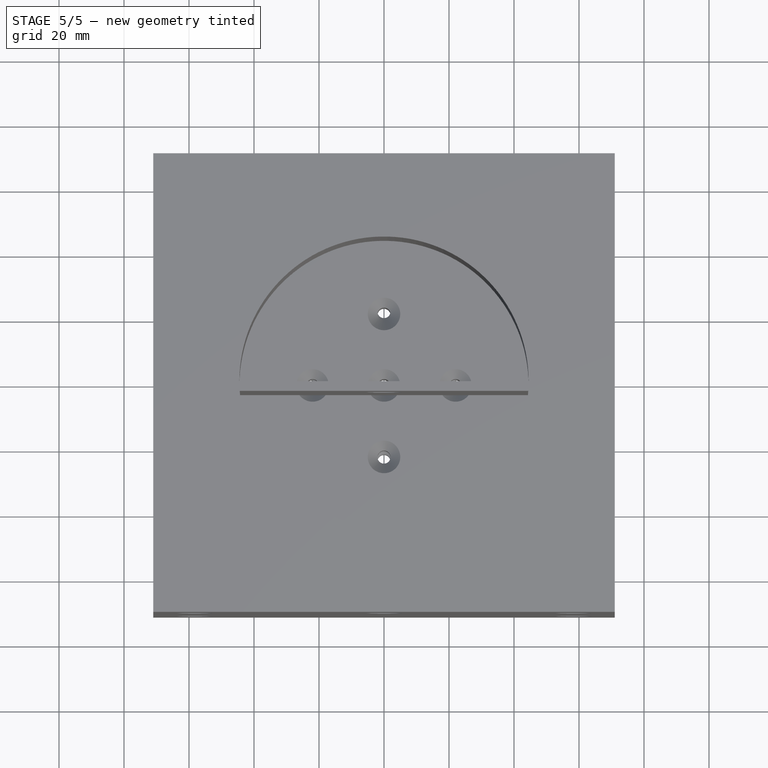
[diagram: stage 5 of 5 — top view after this stage's code; geometry added in this stage tinted green]
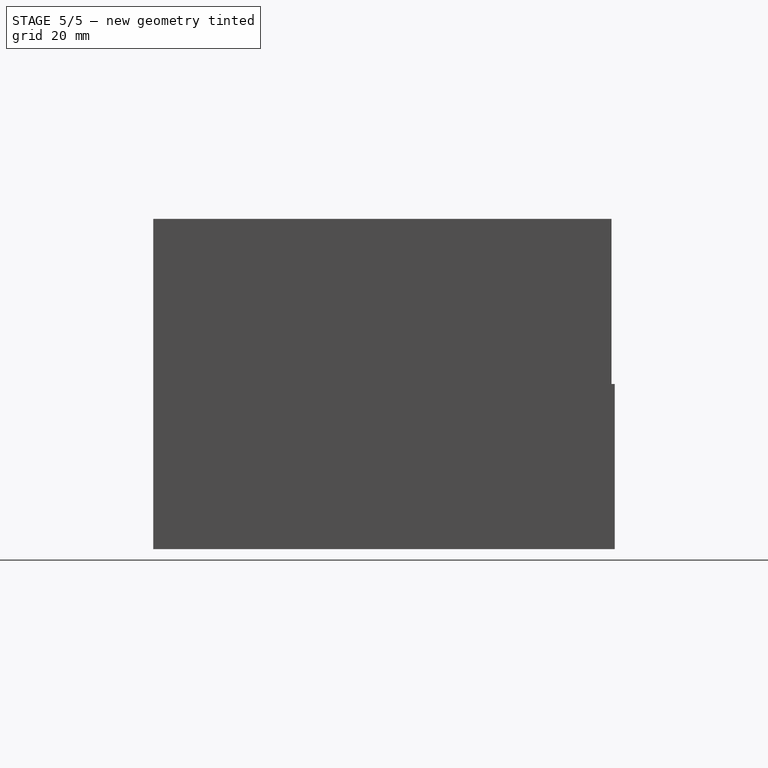
[diagram: stage 5 of 5 — right view after this stage's code; geometry added in this stage tinted green]
FEATURE [Sketcher::SketchObject] Sketch003
  FullyConstrained = true
  MapMode = 5
  Support = -> [XY_Plane003]
  expr: Constraints[10] = <<p>>.mast_od + <<p>>.mast_clearance * 2
  expr: Constraints[9] = <<p>>.mast_od + <<p>>.mast_clearance * 2
  sketch-geometry (4):
    g0: LineSegment StartX=-70 StartY=70 StartZ=0 EndX=70 EndY=70 EndZ=0
    g1: LineSegment StartX=70 StartY=70 StartZ=0 EndX=70 EndY=-70 EndZ=0
    g2: LineSegment StartX=70 StartY=-70 StartZ=0 EndX=-70 EndY=-70 EndZ=0
    g3: LineSegment StartX=-70 StartY=-70 StartZ=0 EndX=-70 EndY=70 EndZ=0
  constraints (11):
    c: Coincident(g0,g1)
    c: Coincident(g1,g2)
    c: Coincident(g2,g3)
    c: Coincident(g3,g0)
    c: Horizontal(g0)
    c: Horizontal(g2)
    c: Vertical(g1)
    c: Vertical(g3)
    c: Symmetric(g0,g2,g-1)
    c: DistanceX(g0,g0) = 140
    c: DistanceY(g1,g1) = 140
FEATURE [PartDesign::Pad] Pad001  label="HolderBase"
  Direction = (0,0,1)
  Length = 50.8
  Length2 = 10
  Profile = -> Sketch003
  ReferenceAxis = -> Sketch003 [N_Axis]
  Type = 0
  expr: Length = <<p>>.holder_thickness
FEATURE [Sketcher::SketchObject] Sketch004
  FullyConstrained = true
  MapMode = 5
  Placement = pos=(0,0,50.8) rot=(0,0,1;0rad)
  Support = -> [Pad001]
  expr: Constraints[1] = <<p>>.mast_od
  sketch-geometry (1):
    g0: Circle CenterX=0 CenterY=0 CenterZ=0 NormalX=0 NormalY=0 NormalZ=1 AngleXU=0 Radius=44.5
  constraints (2):
    c: Coincident(g0,g-1)
    c: Diameter(g0) = 89
FEATURE [PartDesign::Pocket] Pocket002  label="MastPocket001"
  BaseFeature = -> Pad001
  Direction = (0,0,-1)
  Length = 5
  Length2 = 5
  Profile = -> Sketch004
  ReferenceAxis = -> Sketch004 [N_Axis]
  Type = 1
FEATURE [Sketcher::SketchObject] Sketch005
  FullyConstrained = true
  MapMode = 5
  Placement = pos=(0,-70,0) rot=(1,0,0;1.5708rad)
  Support = -> [Pocket002]
  expr: Constraints[1] = <<p>>.bold_diameter
  expr: Constraints[2] = (<<p>>.mast_od + <<p>>.mast_clearance * 2) / 2 - <<p>>.mast_clearance / 2
  expr: Constraints[3] = (<<p>>.mast_od + <<p>>.mast_clearance * 2) / 2 - <<p>>.mast_clearance / 2
  expr: Constraints[4] = <<p>>.holder_thickness / 2
  expr: Constraints[5] = <<p>>.holder_thickness / 2
  sketch-geometry (2):
    g0: Circle CenterX=-57.25 CenterY=25.4 CenterZ=0 NormalX=0 NormalY=0 NormalZ=1 AngleXU=0 Radius=5.5
    g1: Circle CenterX=57.25 CenterY=25.4 CenterZ=0 NormalX=0 NormalY=0 NormalZ=1 AngleXU=0 Radius=5.5
  constraints (6):
    c: Equal(g1,g0)
    c: Diameter(g1) = 11
    c: DistanceX(g0,g-1) = 57.25
    c: DistanceX(g-1,g1) = 57.25
    c: DistanceY(g-1,g0) = 25.4
    c: DistanceY(g-1,g1) = 25.4
FEATURE [PartDesign::Pocket] Pocket003  label="BoltPockets"
  BaseFeature = -> Pocket002
  Direction = (0,1,-2e-16)
  Length = 5
  Length2 = 5
  Profile = -> Sketch005
  ReferenceAxis = -> Sketch005 [N_Axis]
  Type = 1
FEATURE [Sketcher::SketchObject] Sketch006
  FullyConstrained = true
  MapMode = 5
  Placement = pos=(0,0,50.8) rot=(0,0,1;0rad)
  Support = -> [Pocket003]
  expr: Constraints[10] = <<p>>.holder_clearance / 2
  sketch-geometry (4):
    g0: LineSegment StartX=-78.68 StartY=73.5 StartZ=0 EndX=77.18 EndY=73.5 EndZ=0
    g1: LineSegment StartX=77.18 StartY=73.5 StartZ=0 EndX=77.18 EndY=-2 EndZ=0
    g2: LineSegment StartX=77.18 StartY=-2 StartZ=0 EndX=-78.68 EndY=-2 EndZ=0
    g3: LineSegment StartX=-78.68 StartY=-2 StartZ=0 EndX=-78.68 EndY=73.5 EndZ=0
  constraints (12):
    c: Coincident(g0,g1)
    c: Coincident(g1,g2)
    c: Coincident(g2,g3)
    c: Coincident(g3,g0)
    c: Horizontal(g0)
    c: Horizontal(g2)
    c: Vertical(g1)
    c: Vertical(g3)
    c: DistanceX(g0,g0) = 155.86
    c: DistanceY(g1,g1) = 75.5
    c: DistanceY(g2,g-1) = 2
    c: DistanceX(g0,g-1) = 78.68
FEATURE [PartDesign::Pocket] Pocket004  label="HolderCutout"
  BaseFeature = -> Pocket003
  Direction = (0,0,-1)
  Length = 5
  Length2 = 5
  Profile = -> Sketch006
  ReferenceAxis = -> Sketch006 [N_Axis]
  Type = 1
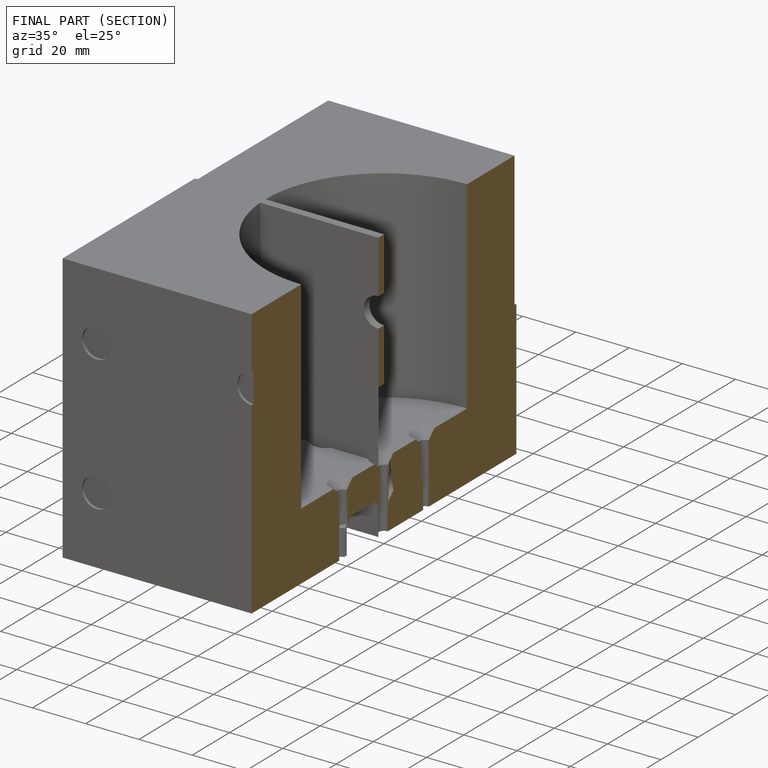
[diagram: finished part — half-section view (interior)]
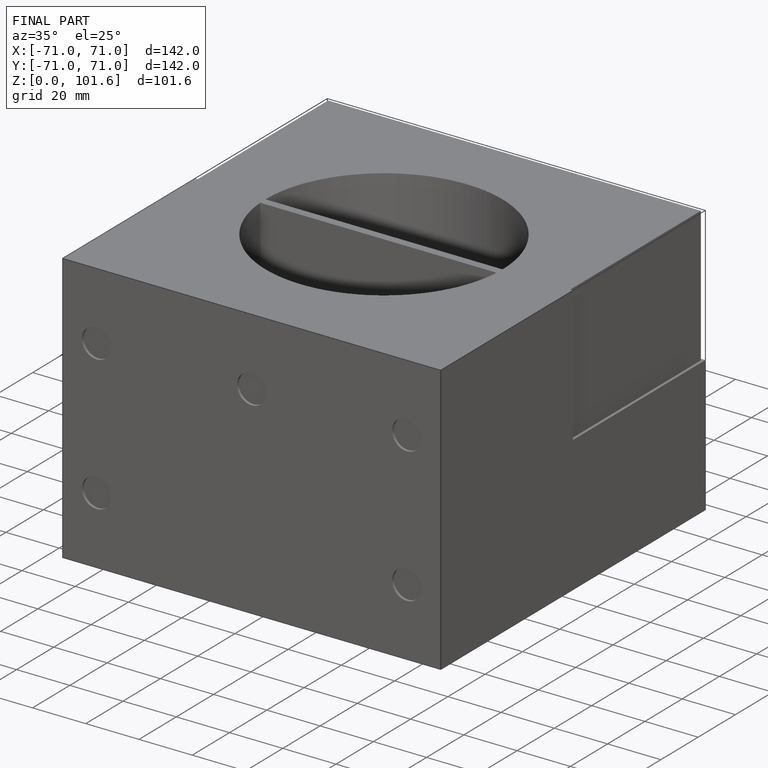
[diagram: finished part — iso view with bounding-box wireframe]
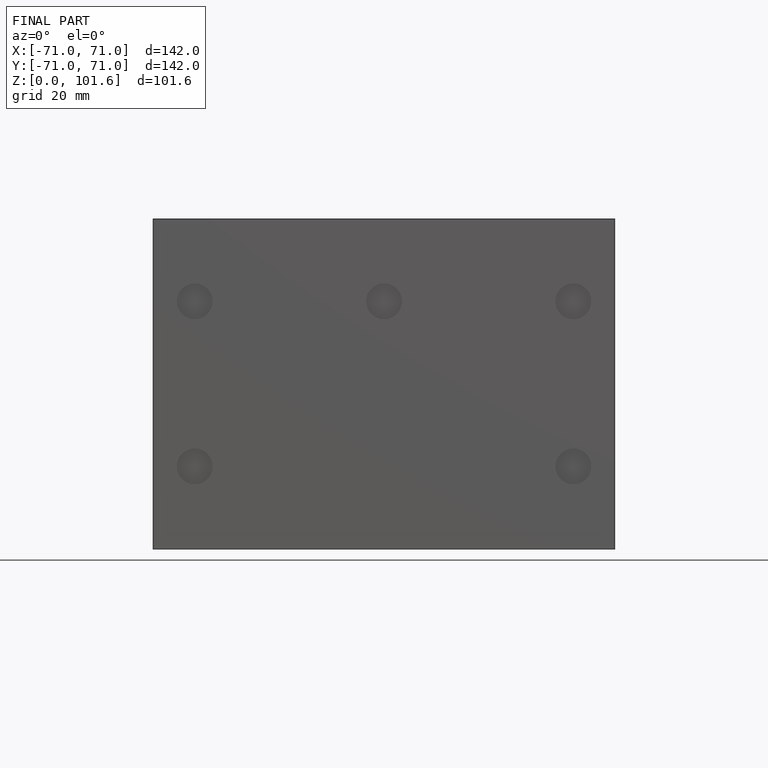
[diagram: finished part — front view with bounding-box wireframe]
